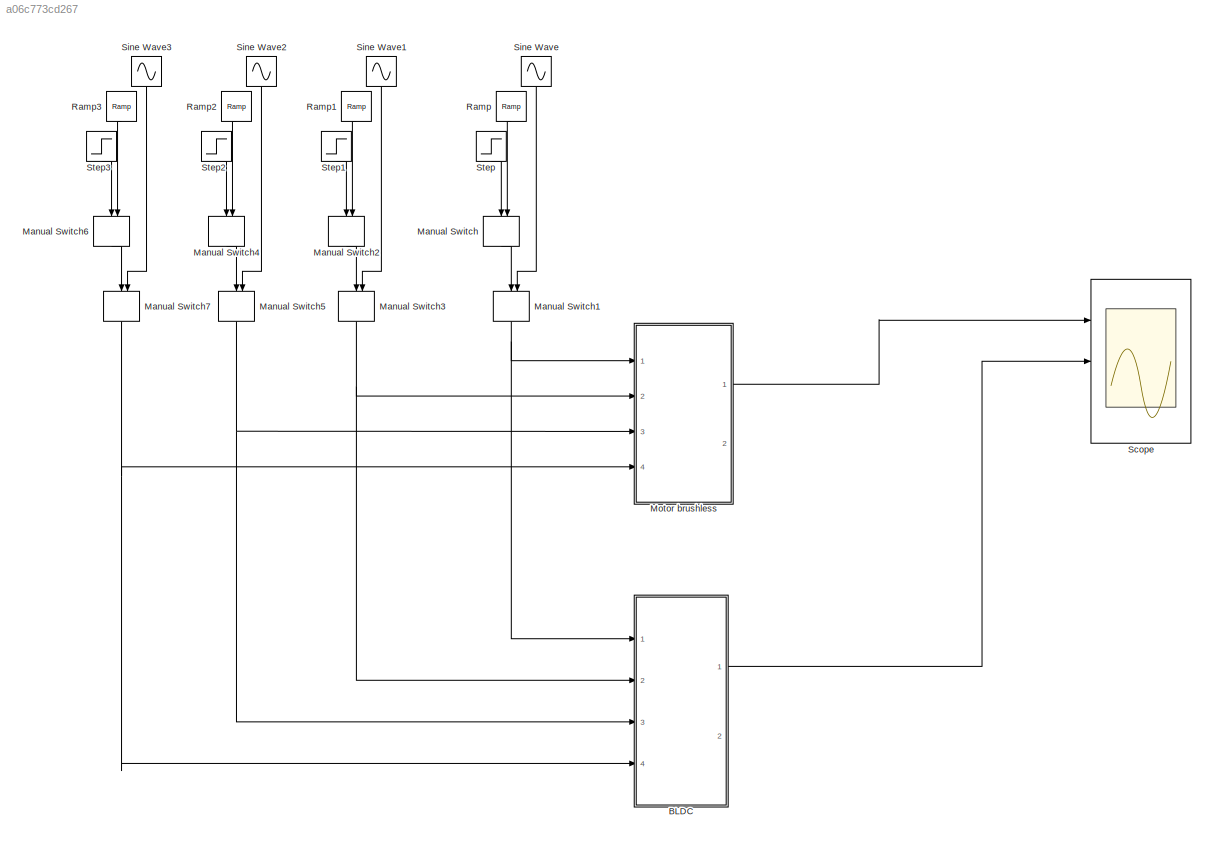
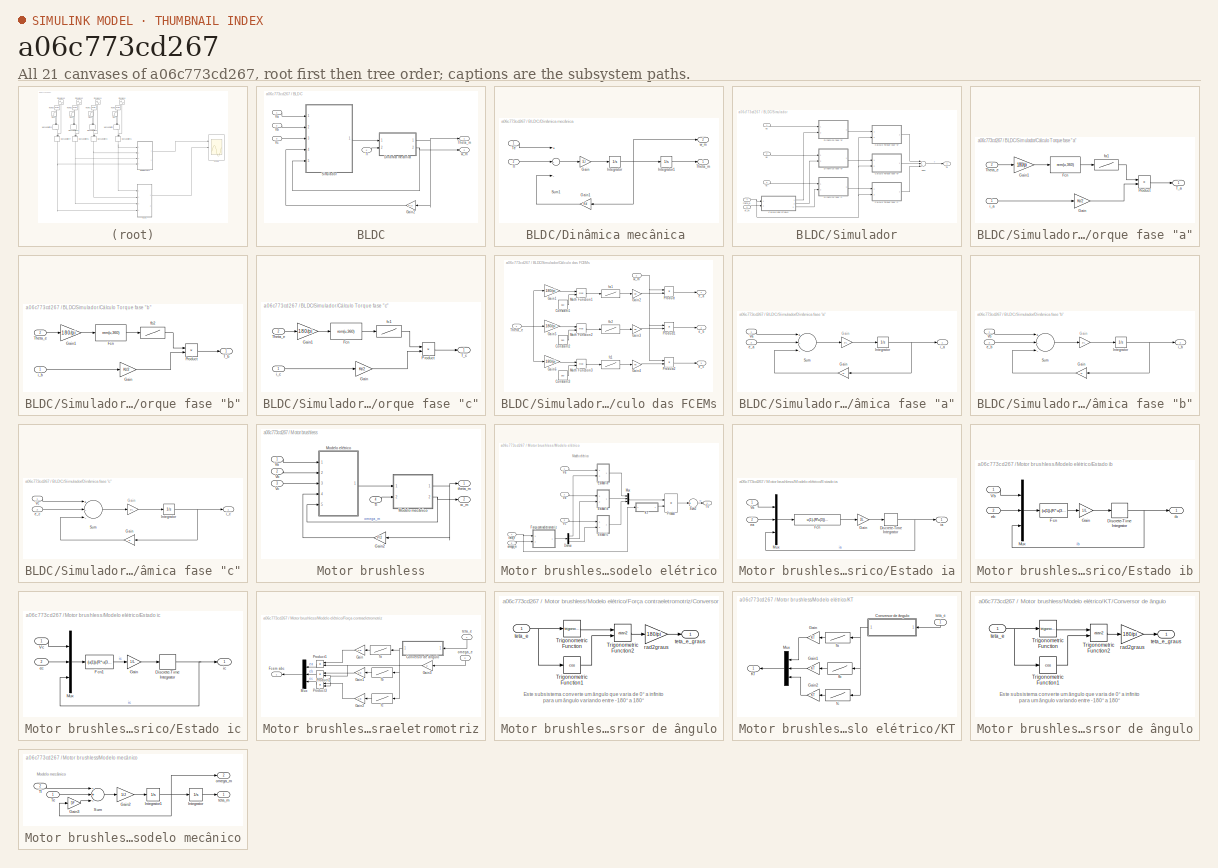
[diagram: thumbnail index - all 21 canvases of the model, root first then tree order]
MODEL slx_a06c773cd267
KIND model
BLOCK [SubSystem] BLDC
  FunctionWithSeparateData = off
  MaskHideContents = off
  MinAlgLoopOccurrences = off
  Opaque = off
  Ports = [4, 2]
  PropExecContextOutsideSubsystem = off
  RTWSystemCode = Auto
  RequestExecContextInheritance = off
BLOCK [SubSystem] BLDC/Dinâmica mecânica 
  FunctionWithSeparateData = off
  MaskHideContents = off
  MinAlgLoopOccurrences = off
  Opaque = off
  Ports = [2, 2]
  PropExecContextOutsideSubsystem = off
  RTWSystemCode = Auto
  RequestExecContextInheritance = off
BLOCK [Gain] BLDC/Dinâmica mecânica /Gain
  Gain = 1/J
  OutDataTypeStr = Inherit: Inherit via internal rule
  ParamDataTypeStr = Inherit: Inherit via internal rule
  SaturateOnIntegerOverflow = off
BLOCK [Gain] BLDC/Dinâmica mecânica /Gain1
  Gain = Kd
  OutDataTypeStr = Inherit: Inherit via internal rule
  ParamDataTypeStr = Inherit: Inherit via internal rule
  SaturateOnIntegerOverflow = off
BLOCK [Integrator] BLDC/Dinâmica mecânica /Integrator
  Ports = [1, 1]
BLOCK [Integrator] BLDC/Dinâmica mecânica /Integrator1
  Ports = [1, 1]
BLOCK [Sum] BLDC/Dinâmica mecânica /Sum1
  InputSameDT = off
  Inputs = +--
  OutDataTypeStr = Inherit: Inherit via internal rule
  Ports = [3, 1]
  SaturateOnIntegerOverflow = off
BLOCK [Inport] BLDC/Dinâmica mecânica /Te
  IconDisplay = Port number
BLOCK [Outport] BLDC/Dinâmica mecânica /Theta_m
  IconDisplay = Port number
BLOCK [Inport] BLDC/Dinâmica mecânica /Tl
  IconDisplay = Port number
  Port = 2
BLOCK [Outport] BLDC/Dinâmica mecânica /w_m
  IconDisplay = Port number
  Port = 2
BLOCK [Gain] BLDC/Gain2
  Gain = P/2
  OutDataTypeStr = Inherit: Inherit via internal rule
  ParamDataTypeStr = Inherit: Inherit via internal rule
  SaturateOnIntegerOverflow = off
BLOCK [SubSystem] BLDC/Simulador
  FunctionWithSeparateData = off
  MaskHideContents = off
  MinAlgLoopOccurrences = off
  Opaque = off
  Ports = [5, 1]
  PropExecContextOutsideSubsystem = off
  RTWSystemCode = Auto
  RequestExecContextInheritance = off
BLOCK [SubSystem] BLDC/Simulador/Cálculo Torque fase "a"
  FunctionWithSeparateData = off
  MaskHideContents = off
  MinAlgLoopOccurrences = off
  Opaque = off
  Ports = [2, 1]
  PropExecContextOutsideSubsystem = off
  RTWSystemCode = Auto
  RequestExecContextInheritance = off
BLOCK [Fcn] BLDC/Simulador/Cálculo Torque fase "a"/Fcn
  Expr = rem(u,360)
BLOCK [Gain] BLDC/Simulador/Cálculo Torque fase "a"/Gain
  Gain = Kt/2
  OutDataTypeStr = Inherit: Inherit via internal rule
  ParamDataTypeStr = Inherit: Inherit via internal rule
  SaturateOnIntegerOverflow = off
BLOCK [Gain] BLDC/Simulador/Cálculo Torque fase "a"/Gain1
  Gain = 180/pi
  OutDataTypeStr = Inherit: Inherit via internal rule
  ParamDataTypeStr = Inherit: Inherit via internal rule
  SaturateOnIntegerOverflow = off
BLOCK [Product] BLDC/Simulador/Cálculo Torque fase "a"/Product
  InputSameDT = off
  OutDataTypeStr = Inherit: Inherit via internal rule
  Ports = [2, 1]
  SaturateOnIntegerOverflow = off
BLOCK [Outport] BLDC/Simulador/Cálculo Torque fase "a"/T_a
  IconDisplay = Port number
BLOCK [Inport] BLDC/Simulador/Cálculo Torque fase "a"/Theta_e
  IconDisplay = Port number
  Port = 2
BLOCK [Lookup] BLDC/Simulador/Cálculo Torque fase "a"/fa1
  InputValues = [0 30 60 90 120 150 180 210 240 270 300 330 360]
  SaturateOnIntegerOverflow = off
  Table = [ 1 1 1 0 -1 -1 -1 -1 -1 0 1 1 1]
BLOCK [Inport] BLDC/Simulador/Cálculo Torque fase "a"/i_a
  IconDisplay = Port number
BLOCK [SubSystem] BLDC/Simulador/Cálculo Torque fase "b"
  FunctionWithSeparateData = off
  MaskHideContents = off
  MinAlgLoopOccurrences = off
  Opaque = off
  Ports = [2, 1]
  PropExecContextOutsideSubsystem = off
  RTWSystemCode = Auto
  RequestExecContextInheritance = off
BLOCK [Fcn] BLDC/Simulador/Cálculo Torque fase "b"/Fcn
  Expr = rem(u,360)
BLOCK [Gain] BLDC/Simulador/Cálculo Torque fase "b"/Gain
  Gain = Kt/2
  OutDataTypeStr = Inherit: Inherit via internal rule
  ParamDataTypeStr = Inherit: Inherit via internal rule
  SaturateOnIntegerOverflow = off
BLOCK [Gain] BLDC/Simulador/Cálculo Torque fase "b"/Gain1
  Gain = 180/pi
  OutDataTypeStr = Inherit: Inherit via internal rule
  ParamDataTypeStr = Inherit: Inherit via internal rule
  SaturateOnIntegerOverflow = off
BLOCK [Product] BLDC/Simulador/Cálculo Torque fase "b"/Product
  InputSameDT = off
  OutDataTypeStr = Inherit: Inherit via internal rule
  Ports = [2, 1]
  SaturateOnIntegerOverflow = off
BLOCK [Outport] BLDC/Simulador/Cálculo Torque fase "b"/T_b
  IconDisplay = Port number
BLOCK [Inport] BLDC/Simulador/Cálculo Torque fase "b"/Theta_e
  IconDisplay = Port number
  Port = 2
BLOCK [Lookup] BLDC/Simulador/Cálculo Torque fase "b"/fb2
  InputValues = [0 30 60 90 120 150 180 210 240 270 300 330 360]
  SaturateOnIntegerOverflow = off
  Table = [-1 0 1 1 1 1 1 0 -1 -1 -1 -1 -1]
BLOCK [Inport] BLDC/Simulador/Cálculo Torque fase "b"/i_b
  IconDisplay = Port number
BLOCK [SubSystem] BLDC/Simulador/Cálculo Torque fase "c"
  FunctionWithSeparateData = off
  MaskHideContents = off
  MinAlgLoopOccurrences = off
  Opaque = off
  Ports = [2, 1]
  PropExecContextOutsideSubsystem = off
  RTWSystemCode = Auto
  RequestExecContextInheritance = off
BLOCK [Fcn] BLDC/Simulador/Cálculo Torque fase "c"/Fcn
  Expr = rem(u,360)
BLOCK [Gain] BLDC/Simulador/Cálculo Torque fase "c"/Gain
  Gain = Kt/2
  OutDataTypeStr = Inherit: Inherit via internal rule
  ParamDataTypeStr = Inherit: Inherit via internal rule
  SaturateOnIntegerOverflow = off
BLOCK [Gain] BLDC/Simulador/Cálculo Torque fase "c"/Gain1
  Gain = 180/pi
  OutDataTypeStr = Inherit: Inherit via internal rule
  ParamDataTypeStr = Inherit: Inherit via internal rule
  SaturateOnIntegerOverflow = off
BLOCK [Product] BLDC/Simulador/Cálculo Torque fase "c"/Product
  InputSameDT = off
  OutDataTypeStr = Inherit: Inherit via internal rule
  Ports = [2, 1]
  SaturateOnIntegerOverflow = off
BLOCK [Outport] BLDC/Simulador/Cálculo Torque fase "c"/T_c
  IconDisplay = Port number
BLOCK [Inport] BLDC/Simulador/Cálculo Torque fase "c"/Theta_e
  IconDisplay = Port number
  Port = 2
BLOCK [Lookup] BLDC/Simulador/Cálculo Torque fase "c"/fc1
  InputValues = [0 30 60 90 120 150 180 210 240 270 300 330 360]
  SaturateOnIntegerOverflow = off
  Table = [-1 -1 -1 -1 -1 0 1 1 1 1 1 0 -1]
BLOCK [Inport] BLDC/Simulador/Cálculo Torque fase "c"/i_c
  IconDisplay = Port number
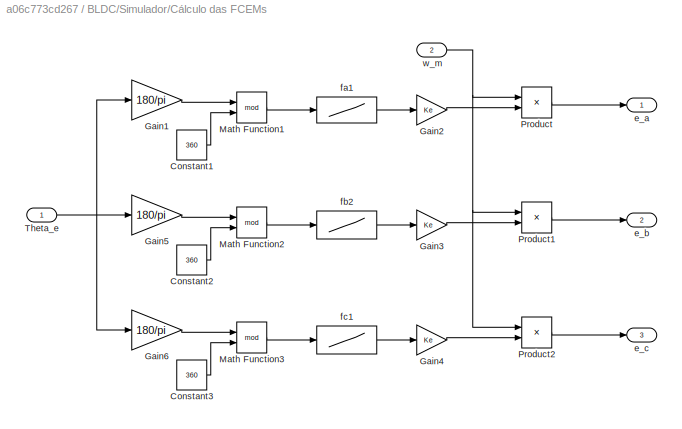
BLOCK [SubSystem] BLDC/Simulador/Cálculo das FCEMs
  FunctionWithSeparateData = off
  MaskHideContents = off
  MinAlgLoopOccurrences = off
  Opaque = off
  Ports = [2, 3]
  PropExecContextOutsideSubsystem = off
  RTWSystemCode = Auto
  RequestExecContextInheritance = off
BLOCK [Constant] BLDC/Simulador/Cálculo das FCEMs/Constant1
  Value = 360
BLOCK [Constant] BLDC/Simulador/Cálculo das FCEMs/Constant2
  Value = 360
BLOCK [Constant] BLDC/Simulador/Cálculo das FCEMs/Constant3
  Value = 360
BLOCK [Gain] BLDC/Simulador/Cálculo das FCEMs/Gain1
  Gain = 180/pi
  OutDataTypeStr = Inherit: Inherit via internal rule
  ParamDataTypeStr = Inherit: Inherit via internal rule
  SaturateOnIntegerOverflow = off
BLOCK [Gain] BLDC/Simulador/Cálculo das FCEMs/Gain2
  Gain = Ke
  OutDataTypeStr = Inherit: Inherit via internal rule
  ParamDataTypeStr = Inherit: Inherit via internal rule
  SaturateOnIntegerOverflow = off
BLOCK [Gain] BLDC/Simulador/Cálculo das FCEMs/Gain3
  Gain = Ke
  OutDataTypeStr = Inherit: Inherit via internal rule
  ParamDataTypeStr = Inherit: Inherit via internal rule
  SaturateOnIntegerOverflow = off
BLOCK [Gain] BLDC/Simulador/Cálculo das FCEMs/Gain4
  Gain = Ke
  OutDataTypeStr = Inherit: Inherit via internal rule
  ParamDataTypeStr = Inherit: Inherit via internal rule
  SaturateOnIntegerOverflow = off
BLOCK [Gain] BLDC/Simulador/Cálculo das FCEMs/Gain5
  Gain = 180/pi
  OutDataTypeStr = Inherit: Inherit via internal rule
  ParamDataTypeStr = Inherit: Inherit via internal rule
  SaturateOnIntegerOverflow = off
BLOCK [Gain] BLDC/Simulador/Cálculo das FCEMs/Gain6
  Gain = 180/pi
  OutDataTypeStr = Inherit: Inherit via internal rule
  ParamDataTypeStr = Inherit: Inherit via internal rule
  SaturateOnIntegerOverflow = off
BLOCK [Math] BLDC/Simulador/Cálculo das FCEMs/Math Function1
  Operator = mod
  Ports = [2, 1]
BLOCK [Math] BLDC/Simulador/Cálculo das FCEMs/Math Function2
  Operator = mod
  Ports = [2, 1]
BLOCK [Math] BLDC/Simulador/Cálculo das FCEMs/Math Function3
  Operator = mod
  Ports = [2, 1]
BLOCK [Product] BLDC/Simulador/Cálculo das FCEMs/Product
  InputSameDT = off
  OutDataTypeStr = Inherit: Inherit via internal rule
  Ports = [2, 1]
  SaturateOnIntegerOverflow = off
BLOCK [Product] BLDC/Simulador/Cálculo das FCEMs/Product1
  InputSameDT = off
  OutDataTypeStr = Inherit: Inherit via internal rule
  Ports = [2, 1]
  SaturateOnIntegerOverflow = off
BLOCK [Product] BLDC/Simulador/Cálculo das FCEMs/Product2
  InputSameDT = off
  OutDataTypeStr = Inherit: Inherit via internal rule
  Ports = [2, 1]
  SaturateOnIntegerOverflow = off
BLOCK [Inport] BLDC/Simulador/Cálculo das FCEMs/Theta_e
  IconDisplay = Port number
BLOCK [Outport] BLDC/Simulador/Cálculo das FCEMs/e_a
  IconDisplay = Port number
BLOCK [Outport] BLDC/Simulador/Cálculo das FCEMs/e_b
  IconDisplay = Port number
  Port = 2
BLOCK [Outport] BLDC/Simulador/Cálculo das FCEMs/e_c
  IconDisplay = Port number
  Port = 3
BLOCK [Lookup] BLDC/Simulador/Cálculo das FCEMs/fa1
  InputValues = [0 30 60 90 120 150 180 210 240 270 300 330 360]
  SaturateOnIntegerOverflow = off
  Table = [ 1 1 1 0 -1 -1 -1 -1 -1 0 1 1 1]
BLOCK [Lookup] BLDC/Simulador/Cálculo das FCEMs/fb2
  InputValues = [0 30 60 90 120 150 180 210 240 270 300 330 360]
  SaturateOnIntegerOverflow = off
  Table = [-1 0 1 1 1 1 1 0 -1 -1 -1 -1 -1]
BLOCK [Lookup] BLDC/Simulador/Cálculo das FCEMs/fc1
  InputValues = [0 30 60 90 120 150 180 210 240 270 300 330 360]
  SaturateOnIntegerOverflow = off
  Table = [-1 -1 -1 -1 -1 0 1 1 1 1 1 0 -1]
BLOCK [Inport] BLDC/Simulador/Cálculo das FCEMs/w_m
  IconDisplay = Port number
  Port = 2
BLOCK [SubSystem] BLDC/Simulador/Dinâmica fase "a"
  FunctionWithSeparateData = off
  MaskHideContents = off
  MinAlgLoopOccurrences = off
  Opaque = off
  Ports = [2, 1]
  PropExecContextOutsideSubsystem = off
  RTWSystemCode = Auto
  RequestExecContextInheritance = off
BLOCK [Gain] BLDC/Simulador/Dinâmica fase "a"/ 
  Gain = 1/L
  OutDataTypeStr = Inherit: Inherit via internal rule
  ParamDataTypeStr = Inherit: Inherit via internal rule
  SaturateOnIntegerOverflow = off
BLOCK [Gain] BLDC/Simulador/Dinâmica fase "a"/Gain
  Gain = R
  OutDataTypeStr = Inherit: Inherit via internal rule
  ParamDataTypeStr = Inherit: Inherit via internal rule
  SaturateOnIntegerOverflow = off
BLOCK [Integrator] BLDC/Simulador/Dinâmica fase "a"/Integrator
  Ports = [1, 1]
BLOCK [Sum] BLDC/Simulador/Dinâmica fase "a"/Sum
  InputSameDT = off
  Inputs = +--
  OutDataTypeStr = Inherit: Inherit via internal rule
  Ports = [3, 1]
  SaturateOnIntegerOverflow = off
BLOCK [Inport] BLDC/Simulador/Dinâmica fase "a"/Va
  IconDisplay = Port number
BLOCK [Inport] BLDC/Simulador/Dinâmica fase "a"/e_a
  IconDisplay = Port number
  Port = 2
BLOCK [Outport] BLDC/Simulador/Dinâmica fase "a"/i_a
  IconDisplay = Port number
BLOCK [SubSystem] BLDC/Simulador/Dinâmica fase "b"
  FunctionWithSeparateData = off
  MaskHideContents = off
  MinAlgLoopOccurrences = off
  Opaque = off
  Ports = [2, 1]
  PropExecContextOutsideSubsystem = off
  RTWSystemCode = Auto
  RequestExecContextInheritance = off
BLOCK [Gain] BLDC/Simulador/Dinâmica fase "b"/ 
  Gain = 1/L
  OutDataTypeStr = Inherit: Inherit via internal rule
  ParamDataTypeStr = Inherit: Inherit via internal rule
  SaturateOnIntegerOverflow = off
BLOCK [Gain] BLDC/Simulador/Dinâmica fase "b"/Gain
  Gain = R
  OutDataTypeStr = Inherit: Inherit via internal rule
  ParamDataTypeStr = Inherit: Inherit via internal rule
  SaturateOnIntegerOverflow = off
BLOCK [Integrator] BLDC/Simulador/Dinâmica fase "b"/Integrator
  Ports = [1, 1]
BLOCK [Sum] BLDC/Simulador/Dinâmica fase "b"/Sum
  InputSameDT = off
  Inputs = +--
  OutDataTypeStr = Inherit: Inherit via internal rule
  Ports = [3, 1]
  SaturateOnIntegerOverflow = off
BLOCK [Inport] BLDC/Simulador/Dinâmica fase "b"/Vb
  IconDisplay = Port number
BLOCK [Inport] BLDC/Simulador/Dinâmica fase "b"/e_b
  IconDisplay = Port number
  Port = 2
BLOCK [Outport] BLDC/Simulador/Dinâmica fase "b"/i_b
  IconDisplay = Port number
BLOCK [SubSystem] BLDC/Simulador/Dinâmica fase "c"
  FunctionWithSeparateData = off
  MaskHideContents = off
  MinAlgLoopOccurrences = off
  Opaque = off
  Ports = [2, 1]
  PropExecContextOutsideSubsystem = off
  RTWSystemCode = Auto
  RequestExecContextInheritance = off
BLOCK [Gain] BLDC/Simulador/Dinâmica fase "c"/ 
  Gain = 1/L
  OutDataTypeStr = Inherit: Inherit via internal rule
  ParamDataTypeStr = Inherit: Inherit via internal rule
  SaturateOnIntegerOverflow = off
BLOCK [Gain] BLDC/Simulador/Dinâmica fase "c"/Gain
  Gain = R
  OutDataTypeStr = Inherit: Inherit via internal rule
  ParamDataTypeStr = Inherit: Inherit via internal rule
  SaturateOnIntegerOverflow = off
BLOCK [Integrator] BLDC/Simulador/Dinâmica fase "c"/Integrator
  Ports = [1, 1]
BLOCK [Sum] BLDC/Simulador/Dinâmica fase "c"/Sum
  InputSameDT = off
  Inputs = +--
  OutDataTypeStr = Inherit: Inherit via internal rule
  Ports = [3, 1]
  SaturateOnIntegerOverflow = off
BLOCK [Inport] BLDC/Simulador/Dinâmica fase "c"/Vc
  IconDisplay = Port number
BLOCK [Inport] BLDC/Simulador/Dinâmica fase "c"/e_c
  IconDisplay = Port number
  Port = 2
BLOCK [Outport] BLDC/Simulador/Dinâmica fase "c"/i_c
  IconDisplay = Port number
BLOCK [Sum] BLDC/Simulador/Sum
  InputSameDT = off
  Inputs = +++
  OutDataTypeStr = Inherit: Inherit via internal rule
  Ports = [3, 1]
  SaturateOnIntegerOverflow = off
BLOCK [Outport] BLDC/Simulador/Te
  IconDisplay = Port number
BLOCK [Inport] BLDC/Simulador/Va
  IconDisplay = Port number
BLOCK [Inport] BLDC/Simulador/Vb
  IconDisplay = Port number
  Port = 2
BLOCK [Inport] BLDC/Simulador/Vc
  IconDisplay = Port number
  Port = 3
BLOCK [Inport] BLDC/Simulador/theta_e
  IconDisplay = Port number
  Port = 4
BLOCK [Inport] BLDC/Simulador/w_m
  IconDisplay = Port number
  Port = 5
BLOCK [Outport] BLDC/Theta_m
  IconDisplay = Port number
BLOCK [Inport] BLDC/Tl
  IconDisplay = Port number
  Port = 4
BLOCK [Inport] BLDC/Va
  IconDisplay = Port number
BLOCK [Inport] BLDC/Vb
  IconDisplay = Port number
  Port = 2
BLOCK [Inport] BLDC/Vc
  IconDisplay = Port number
  Port = 3
BLOCK [Outport] BLDC/w_m
  IconDisplay = Port number
  Port = 2
BLOCK [ManualSwitch] Manual Switch
BLOCK [ManualSwitch] Manual Switch1
BLOCK [ManualSwitch] Manual Switch2
BLOCK [ManualSwitch] Manual Switch3
BLOCK [ManualSwitch] Manual Switch4
BLOCK [ManualSwitch] Manual Switch5
BLOCK [ManualSwitch] Manual Switch6
BLOCK [ManualSwitch] Manual Switch7
BLOCK [SubSystem] Motor brushless
  FunctionWithSeparateData = off
  MaskHideContents = off
  MinAlgLoopOccurrences = off
  Opaque = off
  Ports = [4, 2]
  PropExecContextOutsideSubsystem = off
  RTWSystemCode = Auto
  RequestExecContextInheritance = off
BLOCK [Gain] Motor brushless/Gain2
  Gain = P/2
  OutDataTypeStr = Inherit: Inherit via internal rule
  ParamDataTypeStr = Inherit: Inherit via internal rule
  SaturateOnIntegerOverflow = off
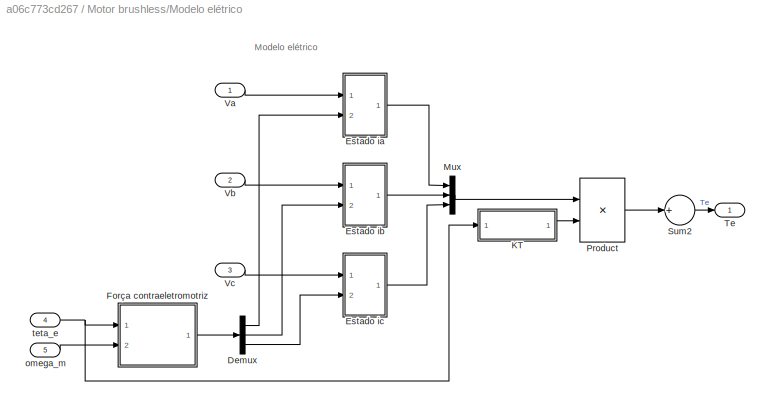
BLOCK [SubSystem] Motor brushless/Modelo elétrico
  FunctionWithSeparateData = off
  MaskHideContents = off
  MinAlgLoopOccurrences = off
  Opaque = off
  Ports = [5, 1]
  PropExecContextOutsideSubsystem = off
  RTWSystemCode = Auto
  RequestExecContextInheritance = off
BLOCK [Demux] Motor brushless/Modelo elétrico/Demux
  DisplayOption = bar
  Outputs = 3
  Ports = [1, 3]
BLOCK [SubSystem] Motor brushless/Modelo elétrico/Estado ia
  FunctionWithSeparateData = off
  MaskHideContents = off
  MinAlgLoopOccurrences = off
  Opaque = off
  Ports = [2, 1]
  PropExecContextOutsideSubsystem = off
  RTWSystemCode = Auto
  RequestExecContextInheritance = off
BLOCK [DiscreteIntegrator] Motor brushless/Modelo elétrico/Estado ia/Discrete-Time Integrator
  ICPrevOutput = DiscIntNeverNeededParam
  ICPrevScaledInput = DiscIntNeverNeededParam
  Ports = [1, 1]
  SampleTime = Ts
BLOCK [Fcn] Motor brushless/Modelo elétrico/Estado ia/Fcn
  Expr = u(1)-(R*u(3))-(u(2))
BLOCK [Gain] Motor brushless/Modelo elétrico/Estado ia/Gain
  Gain = 1/L
  OutDataTypeStr = Inherit: Inherit via internal rule
  ParamDataTypeStr = Inherit: Inherit via internal rule
  SaturateOnIntegerOverflow = off
BLOCK [Mux] Motor brushless/Modelo elétrico/Estado ia/Mux
  DisplayOption = bar
  Inputs = 3
  Ports = [3, 1]
BLOCK [Inport] Motor brushless/Modelo elétrico/Estado ia/Va
  IconDisplay = Port number
BLOCK [Inport] Motor brushless/Modelo elétrico/Estado ia/ea
  IconDisplay = Port number
  Port = 2
BLOCK [Outport] Motor brushless/Modelo elétrico/Estado ia/ia
  IconDisplay = Port number
BLOCK [SubSystem] Motor brushless/Modelo elétrico/Estado ib
  FunctionWithSeparateData = off
  MaskHideContents = off
  MinAlgLoopOccurrences = off
  Opaque = off
  Ports = [2, 1]
  PropExecContextOutsideSubsystem = off
  RTWSystemCode = Auto
  RequestExecContextInheritance = off
BLOCK [DiscreteIntegrator] Motor brushless/Modelo elétrico/Estado ib/Discrete-Time Integrator
  ICPrevOutput = DiscIntNeverNeededParam
  ICPrevScaledInput = DiscIntNeverNeededParam
  Ports = [1, 1]
  SampleTime = Ts
BLOCK [Fcn] Motor brushless/Modelo elétrico/Estado ib/Fcn
  Expr = (u(1))-(R*u(3))-(u(2))
BLOCK [Gain] Motor brushless/Modelo elétrico/Estado ib/Gain
  Gain = 1/L
  OutDataTypeStr = Inherit: Inherit via internal rule
  ParamDataTypeStr = Inherit: Inherit via internal rule
  SaturateOnIntegerOverflow = off
BLOCK [Mux] Motor brushless/Modelo elétrico/Estado ib/Mux
  DisplayOption = bar
  Inputs = 3
  Ports = [3, 1]
BLOCK [Inport] Motor brushless/Modelo elétrico/Estado ib/Vb
  IconDisplay = Port number
BLOCK [Inport] Motor brushless/Modelo elétrico/Estado ib/eb
  IconDisplay = Port number
  Port = 2
BLOCK [Outport] Motor brushless/Modelo elétrico/Estado ib/ib
  IconDisplay = Port number
BLOCK [SubSystem] Motor brushless/Modelo elétrico/Estado ic
  FunctionWithSeparateData = off
  MaskHideContents = off
  MinAlgLoopOccurrences = off
  Opaque = off
  Ports = [2, 1]
  PropExecContextOutsideSubsystem = off
  RTWSystemCode = Auto
  RequestExecContextInheritance = off
BLOCK [DiscreteIntegrator] Motor brushless/Modelo elétrico/Estado ic/Discrete-Time Integrator
  ICPrevOutput = DiscIntNeverNeededParam
  ICPrevScaledInput = DiscIntNeverNeededParam
  Ports = [1, 1]
  SampleTime = Ts
BLOCK [Fcn] Motor brushless/Modelo elétrico/Estado ic/Fcn1
  Expr = (u(1))-(R*u(3))-(u(2))
BLOCK [Gain] Motor brushless/Modelo elétrico/Estado ic/Gain
  Gain = 1/L
  OutDataTypeStr = Inherit: Inherit via internal rule
  ParamDataTypeStr = Inherit: Inherit via internal rule
  SaturateOnIntegerOverflow = off
BLOCK [Mux] Motor brushless/Modelo elétrico/Estado ic/Mux
  DisplayOption = bar
  Inputs = 3
  Ports = [3, 1]
BLOCK [Inport] Motor brushless/Modelo elétrico/Estado ic/Vc
  IconDisplay = Port number
BLOCK [Inport] Motor brushless/Modelo elétrico/Estado ic/ec
  IconDisplay = Port number
  Port = 2
BLOCK [Outport] Motor brushless/Modelo elétrico/Estado ic/ic
  IconDisplay = Port number
BLOCK [SubSystem] Motor brushless/Modelo elétrico/Força contraeletromotriz
  FunctionWithSeparateData = off
  MaskHideContents = off
  MinAlgLoopOccurrences = off
  Opaque = off
  Ports = [2, 1]
  PropExecContextOutsideSubsystem = off
  RTWSystemCode = Auto
  RequestExecContextInheritance = off
BLOCK [SubSystem] Motor brushless/Modelo elétrico/Força contraeletromotriz/Conversor de ângulo
  FunctionWithSeparateData = off
  MaskHideContents = off
  MinAlgLoopOccurrences = off
  Opaque = off
  Ports = [1, 1]
  PropExecContextOutsideSubsystem = off
  RTWSystemCode = Auto
  RequestExecContextInheritance = off
BLOCK [Trigonometry] Motor brushless/Modelo elétrico/Força contraeletromotriz/Conversor de ângulo/Trigonometric Function
  Ports = [1, 1]
BLOCK [Trigonometry] Motor brushless/Modelo elétrico/Força contraeletromotriz/Conversor de ângulo/Trigonometric Function1
  Operator = cos
  Ports = [1, 1]
BLOCK [Trigonometry] Motor brushless/Modelo elétrico/Força contraeletromotriz/Conversor de ângulo/Trigonometric Function2
  Operator = atan2
  Ports = [2, 1]
BLOCK [Gain] Motor brushless/Modelo elétrico/Força contraeletromotriz/Conversor de ângulo/rad2graus
  Gain = 180/pi
BLOCK [Inport] Motor brushless/Modelo elétrico/Força contraeletromotriz/Conversor de ângulo/teta_e
  IconDisplay = Port number
BLOCK [Outport] Motor brushless/Modelo elétrico/Força contraeletromotriz/Conversor de ângulo/teta_e_graus
  IconDisplay = Port number
BLOCK [Outport] Motor brushless/Modelo elétrico/Força contraeletromotriz/Fcem abc
  IconDisplay = Port number
BLOCK [Gain] Motor brushless/Modelo elétrico/Força contraeletromotriz/Gain
  Gain = KE
  OutDataTypeStr = Inherit: Inherit via internal rule
  ParamDataTypeStr = Inherit: Inherit via internal rule
  SaturateOnIntegerOverflow = off
BLOCK [Gain] Motor brushless/Modelo elétrico/Força contraeletromotriz/Gain1
  Gain = KE
  OutDataTypeStr = Inherit: Inherit via internal rule
  ParamDataTypeStr = Inherit: Inherit via internal rule
  SaturateOnIntegerOverflow = off
BLOCK [Gain] Motor brushless/Modelo elétrico/Força contraeletromotriz/Gain2
  Gain = KE
  OutDataTypeStr = Inherit: Inherit via internal rule
  ParamDataTypeStr = Inherit: Inherit via internal rule
  SaturateOnIntegerOverflow = off
BLOCK [Gain] Motor brushless/Modelo elétrico/Força contraeletromotriz/Gain3
  OutDataTypeStr = Inherit: Inherit via internal rule
  ParamDataTypeStr = Inherit: Inherit via internal rule
  SaturateOnIntegerOverflow = off
BLOCK [Mux] Motor brushless/Modelo elétrico/Força contraeletromotriz/Mux
  DisplayOption = bar
  Inputs = 3
  Ports = [3, 1]
BLOCK [Product] Motor brushless/Modelo elétrico/Força contraeletromotriz/Product1
  InputSameDT = off
  Ports = [2, 1]
  RndMeth = Floor
BLOCK [Product] Motor brushless/Modelo elétrico/Força contraeletromotriz/Product2
  InputSameDT = off
  Ports = [2, 1]
  RndMeth = Floor
BLOCK [Product] Motor brushless/Modelo elétrico/Força contraeletromotriz/Product3
  InputSameDT = off
  Ports = [2, 1]
  RndMeth = Floor
BLOCK [Lookup] Motor brushless/Modelo elétrico/Força contraeletromotriz/fa
  InputValues = [-180 -150 -120 -90 -60 -30 0 30 60 90 120 150 180]
  SaturateOnIntegerOverflow = off
  Table = [-1 -1 -1 0 1 1 1 1 1 0 -1 -1 -1]
BLOCK [Lookup] Motor brushless/Modelo elétrico/Força contraeletromotriz/fb
  InputValues = [-180 -150 -120 -90 -60 -30 0 30 60 90 120 150 180]
  SaturateOnIntegerOverflow = off
  Table = [1 0 -1 -1 -1 -1  -1 0 1 1 1 1 1]
BLOCK [Lookup] Motor brushless/Modelo elétrico/Força contraeletromotriz/fc
  InputValues = [-180 -150 -120 -90 -60 -30 0 30 60 90 120 150 180]
  SaturateOnIntegerOverflow = off
  Table = [1 1 1 1 1 0 -1 -1 -1 -1 -1 0 1]
BLOCK [Inport] Motor brushless/Modelo elétrico/Força contraeletromotriz/omega_e
  IconDisplay = Port number
  Port = 2
BLOCK [Inport] Motor brushless/Modelo elétrico/Força contraeletromotriz/teta_e
  IconDisplay = Port number
BLOCK [SubSystem] Motor brushless/Modelo elétrico/KT
  FunctionWithSeparateData = off
  MaskHideContents = off
  MinAlgLoopOccurrences = off
  Opaque = off
  Ports = [1, 1]
  PropExecContextOutsideSubsystem = off
  RTWSystemCode = Auto
  RequestExecContextInheritance = off
BLOCK [SubSystem] Motor brushless/Modelo elétrico/KT/Conversor de ângulo
  FunctionWithSeparateData = off
  MaskHideContents = off
  MinAlgLoopOccurrences = off
  Opaque = off
  Ports = [1, 1]
  PropExecContextOutsideSubsystem = off
  RTWSystemCode = Auto
  RequestExecContextInheritance = off
BLOCK [Trigonometry] Motor brushless/Modelo elétrico/KT/Conversor de ângulo/Trigonometric Function
  Ports = [1, 1]
BLOCK [Trigonometry] Motor brushless/Modelo elétrico/KT/Conversor de ângulo/Trigonometric Function1
  Operator = cos
  Ports = [1, 1]
BLOCK [Trigonometry] Motor brushless/Modelo elétrico/KT/Conversor de ângulo/Trigonometric Function2
  Operator = atan2
  Ports = [2, 1]
BLOCK [Gain] Motor brushless/Modelo elétrico/KT/Conversor de ângulo/rad2graus
  Gain = 180/pi
BLOCK [Inport] Motor brushless/Modelo elétrico/KT/Conversor de ângulo/teta_e
  IconDisplay = Port number
BLOCK [Outport] Motor brushless/Modelo elétrico/KT/Conversor de ângulo/teta_e_graus
  IconDisplay = Port number
BLOCK [Gain] Motor brushless/Modelo elétrico/KT/Gain
  Gain = KT
  OutDataTypeStr = Inherit: Inherit via internal rule
  ParamDataTypeStr = Inherit: Inherit via internal rule
  SaturateOnIntegerOverflow = off
BLOCK [Gain] Motor brushless/Modelo elétrico/KT/Gain1
  Gain = KT
  OutDataTypeStr = Inherit: Inherit via internal rule
  ParamDataTypeStr = Inherit: Inherit via internal rule
  SaturateOnIntegerOverflow = off
BLOCK [Gain] Motor brushless/Modelo elétrico/KT/Gain2
  Gain = KT
  OutDataTypeStr = Inherit: Inherit via internal rule
  ParamDataTypeStr = Inherit: Inherit via internal rule
  SaturateOnIntegerOverflow = off
BLOCK [Outport] Motor brushless/Modelo elétrico/KT/KT
  IconDisplay = Port number
BLOCK [Mux] Motor brushless/Modelo elétrico/KT/Mux
  DisplayOption = bar
  Inputs = 3
  Ports = [3, 1]
BLOCK [Lookup] Motor brushless/Modelo elétrico/KT/fa
  InputValues = [-180 -150 -120 -90 -60 -30 0 30 60 90 120 150 180]
  SaturateOnIntegerOverflow = off
  Table = [-1 -1 -1 0 1 1 1 1 1 0 -1 -1 -1]
BLOCK [Lookup] Motor brushless/Modelo elétrico/KT/fb
  InputValues = [-180 -150 -120 -90 -60 -30 0 30 60 90 120 150 180]
  SaturateOnIntegerOverflow = off
  Table = [1 0 -1 -1 -1 -1  -1 0 1 1 1 1 1]
BLOCK [Lookup] Motor brushless/Modelo elétrico/KT/fc
  InputValues = [-180 -150 -120 -90 -60 -30 0 30 60 90 120 150 180]
  SaturateOnIntegerOverflow = off
  Table = [1 1 1 1 1 0 -1 -1 -1 -1 -1 0 1]
BLOCK [Inport] Motor brushless/Modelo elétrico/KT/teta_e
  IconDisplay = Port number
BLOCK [Mux] Motor brushless/Modelo elétrico/Mux
  DisplayOption = bar
  Inputs = 3
  Ports = [3, 1]
BLOCK [Product] Motor brushless/Modelo elétrico/Product
  InputSameDT = off
  Ports = [2, 1]
  RndMeth = Floor
BLOCK [Sum] Motor brushless/Modelo elétrico/Sum2
  IconShape = round
  InputSameDT = off
  Inputs = +
  OutDataTypeStr = Inherit: Inherit via internal rule
  Ports = [1, 1]
BLOCK [Outport] Motor brushless/Modelo elétrico/Te
  IconDisplay = Port number
BLOCK [Inport] Motor brushless/Modelo elétrico/Va
  IconDisplay = Port number
BLOCK [Inport] Motor brushless/Modelo elétrico/Vb
  IconDisplay = Port number
  Port = 2
BLOCK [Inport] Motor brushless/Modelo elétrico/Vc
  IconDisplay = Port number
  Port = 3
BLOCK [Inport] Motor brushless/Modelo elétrico/omega_m
  IconDisplay = Port number
  Port = 5
BLOCK [Inport] Motor brushless/Modelo elétrico/teta_e
  IconDisplay = Port number
  Port = 4
BLOCK [SubSystem] Motor brushless/Modelo mecânico
  FunctionWithSeparateData = off
  MaskHideContents = off
  MinAlgLoopOccurrences = off
  Opaque = off
  Ports = [2, 2]
  PropExecContextOutsideSubsystem = off
  RTWSystemCode = Auto
  RequestExecContextInheritance = off
BLOCK [Gain] Motor brushless/Modelo mecânico/Gain2
  Gain = 1/J
BLOCK [Gain] Motor brushless/Modelo mecânico/Gain3
  Gain = DF
BLOCK [Integrator] Motor brushless/Modelo mecânico/Integrator
  Ports = [1, 1]
BLOCK [Integrator] Motor brushless/Modelo mecânico/Integrator1
  Ports = [1, 1]
BLOCK [Sum] Motor brushless/Modelo mecânico/Sum
  Inputs = -+-
  Ports = [3, 1]
BLOCK [Inport] Motor brushless/Modelo mecânico/Te
  IconDisplay = Port number
BLOCK [Inport] Motor brushless/Modelo mecânico/Tl
  IconDisplay = Port number
  Port = 2
BLOCK [Outport] Motor brushless/Modelo mecânico/omega_m
  IconDisplay = Port number
  Port = 2
BLOCK [Outport] Motor brushless/Modelo mecânico/teta_m
  IconDisplay = Port number
BLOCK [Inport] Motor brushless/Tl
  IconDisplay = Port number
  Port = 4
BLOCK [Inport] Motor brushless/Va
  IconDisplay = Port number
BLOCK [Inport] Motor brushless/Vb
  IconDisplay = Port number
  Port = 2
BLOCK [Inport] Motor brushless/Vc
  IconDisplay = Port number
  Port = 3
BLOCK [Outport] Motor brushless/theta_m
  IconDisplay = Port number
BLOCK [Outport] Motor brushless/w_m
  IconDisplay = Port number
  Port = 2
BLOCK [Reference] Ramp  REF=simulink/Sources/Ramp
  Ports = [0, 1]
  SourceBlock = simulink/Sources/Ramp
  SourceType = Ramp
  VectorParams1D = on
  X0 = 0
  slope = 2*pi
  start = 0
BLOCK [Reference] Ramp1  REF=simulink/Sources/Ramp
  Ports = [0, 1]
  SourceBlock = simulink/Sources/Ramp
  SourceType = Ramp
  VectorParams1D = on
  X0 = 0
  slope = 2*pi
  start = 0
BLOCK [Reference] Ramp2  REF=simulink/Sources/Ramp
  Ports = [0, 1]
  SourceBlock = simulink/Sources/Ramp
  SourceType = Ramp
  VectorParams1D = on
  X0 = 0
  slope = 2*pi
  start = 0
BLOCK [Reference] Ramp3  REF=simulink/Sources/Ramp
  Ports = [0, 1]
  SourceBlock = simulink/Sources/Ramp
  SourceType = Ramp
  VectorParams1D = on
  X0 = 0
  slope = 2*pi
  start = 0
BLOCK [Scope] Scope
  DataFormat = StructureWithTime
  Floating = off
  LimitDataPoints = off
  NumInputPorts = 3
  Ports = [3]
  SampleTime = 0
  ShowLegends = off
  TimeRange = 0.5
  YMax = 0~0~0.01
  YMin = -0.275~-90~-0.01
  ZoomMode = yonly
BLOCK [Sin] Sine Wave
  Ports = [0, 1]
  SampleTime = 0
BLOCK [Sin] Sine Wave1
  Ports = [0, 1]
  SampleTime = 0
BLOCK [Sin] Sine Wave2
  Ports = [0, 1]
  SampleTime = 0
BLOCK [Sin] Sine Wave3
  Ports = [0, 1]
  SampleTime = 0
BLOCK [Step] Step
  After = 12
  SampleTime = 0
  Time = 0
BLOCK [Step] Step1
  After = 12
  SampleTime = 0
  Time = 0
BLOCK [Step] Step2
  After = 12
  SampleTime = 0
  Time = 0
BLOCK [Step] Step3
  After = 0
  SampleTime = 0
  Time = 0
ANNOTATION BLDC/Simulador/Dinâmica fase "a": Gain
ANNOTATION BLDC/Simulador/Dinâmica fase "b": Gain
ANNOTATION BLDC/Simulador/Dinâmica fase "c": Gain
ANNOTATION Motor brushless/Modelo elétrico: Modelo elétrico
ANNOTATION Motor brushless/Modelo elétrico/Força contraeletromotriz/Conversor de ângulo: Este subsistema converte um ângulo que varia de 0° a infinito para um ângulo variando entre -180° a 180°
ANNOTATION Motor brushless/Modelo elétrico/KT/Conversor de ângulo: Este subsistema converte um ângulo que varia de 0° a infinito para um ângulo variando entre -180° a 180°
ANNOTATION Motor brushless/Modelo mecânico: Modelo mecânico
LINE BLDC/Dinâmica mecânica /Gain1:1 -> BLDC/Dinâmica mecânica /Sum1:3
LINE BLDC/Dinâmica mecânica /Gain:1 -> BLDC/Dinâmica mecânica /Integrator:1
LINE BLDC/Dinâmica mecânica /Integrator1:1 -> BLDC/Dinâmica mecânica /Theta_m:1
NET BLDC/Dinâmica mecânica /Integrator:1 -> BLDC/Dinâmica mecânica /Gain1:1, BLDC/Dinâmica mecânica /Integrator1:1, BLDC/Dinâmica mecânica /w_m:1
LINE BLDC/Dinâmica mecânica /Sum1:1 -> BLDC/Dinâmica mecânica /Gain:1
LINE BLDC/Dinâmica mecânica /Te:1 -> BLDC/Dinâmica mecânica /Sum1:1
LINE BLDC/Dinâmica mecânica /Tl:1 -> BLDC/Dinâmica mecânica /Sum1:2
NET BLDC/Dinâmica mecânica :1 -> BLDC/Gain2:1, BLDC/Theta_m:1
NET BLDC/Dinâmica mecânica :2 -> BLDC/Simulador:5, BLDC/w_m:1
LINE BLDC/Gain2:1 -> BLDC/Simulador:4
LINE BLDC/Simulador/Cálculo Torque fase "a"/Fcn:1 -> BLDC/Simulador/Cálculo Torque fase "a"/fa1:1
LINE BLDC/Simulador/Cálculo Torque fase "a"/Gain1:1 -> BLDC/Simulador/Cálculo Torque fase "a"/Fcn:1
LINE BLDC/Simulador/Cálculo Torque fase "a"/Gain:1 -> BLDC/Simulador/Cálculo Torque fase "a"/Product:2
LINE BLDC/Simulador/Cálculo Torque fase "a"/Product:1 -> BLDC/Simulador/Cálculo Torque fase "a"/T_a:1
LINE BLDC/Simulador/Cálculo Torque fase "a"/Theta_e:1 -> BLDC/Simulador/Cálculo Torque fase "a"/Gain1:1
LINE BLDC/Simulador/Cálculo Torque fase "a"/fa1:1 -> BLDC/Simulador/Cálculo Torque fase "a"/Product:1
LINE BLDC/Simulador/Cálculo Torque fase "a"/i_a:1 -> BLDC/Simulador/Cálculo Torque fase "a"/Gain:1
LINE BLDC/Simulador/Cálculo Torque fase "a":1 -> BLDC/Simulador/Sum:1
LINE BLDC/Simulador/Cálculo Torque fase "b"/Fcn:1 -> BLDC/Simulador/Cálculo Torque fase "b"/fb2:1
LINE BLDC/Simulador/Cálculo Torque fase "b"/Gain1:1 -> BLDC/Simulador/Cálculo Torque fase "b"/Fcn:1
LINE BLDC/Simulador/Cálculo Torque fase "b"/Gain:1 -> BLDC/Simulador/Cálculo Torque fase "b"/Product:2
LINE BLDC/Simulador/Cálculo Torque fase "b"/Product:1 -> BLDC/Simulador/Cálculo Torque fase "b"/T_b:1
LINE BLDC/Simulador/Cálculo Torque fase "b"/Theta_e:1 -> BLDC/Simulador/Cálculo Torque fase "b"/Gain1:1
LINE BLDC/Simulador/Cálculo Torque fase "b"/fb2:1 -> BLDC/Simulador/Cálculo Torque fase "b"/Product:1
LINE BLDC/Simulador/Cálculo Torque fase "b"/i_b:1 -> BLDC/Simulador/Cálculo Torque fase "b"/Gain:1
LINE BLDC/Simulador/Cálculo Torque fase "b":1 -> BLDC/Simulador/Sum:2
LINE BLDC/Simulador/Cálculo Torque fase "c"/Fcn:1 -> BLDC/Simulador/Cálculo Torque fase "c"/fc1:1
LINE BLDC/Simulador/Cálculo Torque fase "c"/Gain1:1 -> BLDC/Simulador/Cálculo Torque fase "c"/Fcn:1
LINE BLDC/Simulador/Cálculo Torque fase "c"/Gain:1 -> BLDC/Simulador/Cálculo Torque fase "c"/Product:2
LINE BLDC/Simulador/Cálculo Torque fase "c"/Product:1 -> BLDC/Simulador/Cálculo Torque fase "c"/T_c:1
LINE BLDC/Simulador/Cálculo Torque fase "c"/Theta_e:1 -> BLDC/Simulador/Cálculo Torque fase "c"/Gain1:1
LINE BLDC/Simulador/Cálculo Torque fase "c"/fc1:1 -> BLDC/Simulador/Cálculo Torque fase "c"/Product:1
LINE BLDC/Simulador/Cálculo Torque fase "c"/i_c:1 -> BLDC/Simulador/Cálculo Torque fase "c"/Gain:1
LINE BLDC/Simulador/Cálculo Torque fase "c":1 -> BLDC/Simulador/Sum:3
LINE BLDC/Simulador/Cálculo das FCEMs/Constant1:1 -> BLDC/Simulador/Cálculo das FCEMs/Math Function1:2
LINE BLDC/Simulador/Cálculo das FCEMs/Constant2:1 -> BLDC/Simulador/Cálculo das FCEMs/Math Function2:2
LINE BLDC/Simulador/Cálculo das FCEMs/Constant3:1 -> BLDC/Simulador/Cálculo das FCEMs/Math Function3:2
LINE BLDC/Simulador/Cálculo das FCEMs/Gain1:1 -> BLDC/Simulador/Cálculo das FCEMs/Math Function1:1
LINE BLDC/Simulador/Cálculo das FCEMs/Gain2:1 -> BLDC/Simulador/Cálculo das FCEMs/Product:2
LINE BLDC/Simulador/Cálculo das FCEMs/Gain3:1 -> BLDC/Simulador/Cálculo das FCEMs/Product1:2
LINE BLDC/Simulador/Cálculo das FCEMs/Gain4:1 -> BLDC/Simulador/Cálculo das FCEMs/Product2:2
LINE BLDC/Simulador/Cálculo das FCEMs/Gain5:1 -> BLDC/Simulador/Cálculo das FCEMs/Math Function2:1
LINE BLDC/Simulador/Cálculo das FCEMs/Gain6:1 -> BLDC/Simulador/Cálculo das FCEMs/Math Function3:1
LINE BLDC/Simulador/Cálculo das FCEMs/Math Function1:1 -> BLDC/Simulador/Cálculo das FCEMs/fa1:1
LINE BLDC/Simulador/Cálculo das FCEMs/Math Function2:1 -> BLDC/Simulador/Cálculo das FCEMs/fb2:1
LINE BLDC/Simulador/Cálculo das FCEMs/Math Function3:1 -> BLDC/Simulador/Cálculo das FCEMs/fc1:1
LINE BLDC/Simulador/Cálculo das FCEMs/Product1:1 -> BLDC/Simulador/Cálculo das FCEMs/e_b:1
LINE BLDC/Simulador/Cálculo das FCEMs/Product2:1 -> BLDC/Simulador/Cálculo das FCEMs/e_c:1
LINE BLDC/Simulador/Cálculo das FCEMs/Product:1 -> BLDC/Simulador/Cálculo das FCEMs/e_a:1
NET BLDC/Simulador/Cálculo das FCEMs/Theta_e:1 -> BLDC/Simulador/Cálculo das FCEMs/Gain1:1, BLDC/Simulador/Cálculo das FCEMs/Gain5:1, BLDC/Simulador/Cálculo das FCEMs/Gain6:1
LINE BLDC/Simulador/Cálculo das FCEMs/fa1:1 -> BLDC/Simulador/Cálculo das FCEMs/Gain2:1
LINE BLDC/Simulador/Cálculo das FCEMs/fb2:1 -> BLDC/Simulador/Cálculo das FCEMs/Gain3:1
LINE BLDC/Simulador/Cálculo das FCEMs/fc1:1 -> BLDC/Simulador/Cálculo das FCEMs/Gain4:1
NET BLDC/Simulador/Cálculo das FCEMs/w_m:1 -> BLDC/Simulador/Cálculo das FCEMs/Product1:1, BLDC/Simulador/Cálculo das FCEMs/Product2:1, BLDC/Simulador/Cálculo das FCEMs/Product:1
LINE BLDC/Simulador/Cálculo das FCEMs:1 -> BLDC/Simulador/Dinâmica fase "a":2
LINE BLDC/Simulador/Cálculo das FCEMs:2 -> BLDC/Simulador/Dinâmica fase "b":2
LINE BLDC/Simulador/Cálculo das FCEMs:3 -> BLDC/Simulador/Dinâmica fase "c":2
LINE BLDC/Simulador/Dinâmica fase "a"/ :1 -> BLDC/Simulador/Dinâmica fase "a"/Integrator:1
LINE BLDC/Simulador/Dinâmica fase "a"/Gain:1 -> BLDC/Simulador/Dinâmica fase "a"/Sum:3
NET BLDC/Simulador/Dinâmica fase "a"/Integrator:1 -> BLDC/Simulador/Dinâmica fase "a"/Gain:1, BLDC/Simulador/Dinâmica fase "a"/i_a:1
LINE BLDC/Simulador/Dinâmica fase "a"/Sum:1 -> BLDC/Simulador/Dinâmica fase "a"/ :1
LINE BLDC/Simulador/Dinâmica fase "a"/Va:1 -> BLDC/Simulador/Dinâmica fase "a"/Sum:1
LINE BLDC/Simulador/Dinâmica fase "a"/e_a:1 -> BLDC/Simulador/Dinâmica fase "a"/Sum:2
LINE BLDC/Simulador/Dinâmica fase "a":1 -> BLDC/Simulador/Cálculo Torque fase "a":1
LINE BLDC/Simulador/Dinâmica fase "b"/ :1 -> BLDC/Simulador/Dinâmica fase "b"/Integrator:1
LINE BLDC/Simulador/Dinâmica fase "b"/Gain:1 -> BLDC/Simulador/Dinâmica fase "b"/Sum:3
NET BLDC/Simulador/Dinâmica fase "b"/Integrator:1 -> BLDC/Simulador/Dinâmica fase "b"/Gain:1, BLDC/Simulador/Dinâmica fase "b"/i_b:1
LINE BLDC/Simulador/Dinâmica fase "b"/Sum:1 -> BLDC/Simulador/Dinâmica fase "b"/ :1
LINE BLDC/Simulador/Dinâmica fase "b"/Vb:1 -> BLDC/Simulador/Dinâmica fase "b"/Sum:1
LINE BLDC/Simulador/Dinâmica fase "b"/e_b:1 -> BLDC/Simulador/Dinâmica fase "b"/Sum:2
LINE BLDC/Simulador/Dinâmica fase "b":1 -> BLDC/Simulador/Cálculo Torque fase "b":1
LINE BLDC/Simulador/Dinâmica fase "c"/ :1 -> BLDC/Simulador/Dinâmica fase "c"/Integrator:1
LINE BLDC/Simulador/Dinâmica fase "c"/Gain:1 -> BLDC/Simulador/Dinâmica fase "c"/Sum:3
NET BLDC/Simulador/Dinâmica fase "c"/Integrator:1 -> BLDC/Simulador/Dinâmica fase "c"/Gain:1, BLDC/Simulador/Dinâmica fase "c"/i_c:1
LINE BLDC/Simulador/Dinâmica fase "c"/Sum:1 -> BLDC/Simulador/Dinâmica fase "c"/ :1
LINE BLDC/Simulador/Dinâmica fase "c"/Vc:1 -> BLDC/Simulador/Dinâmica fase "c"/Sum:1
LINE BLDC/Simulador/Dinâmica fase "c"/e_c:1 -> BLDC/Simulador/Dinâmica fase "c"/Sum:2
LINE BLDC/Simulador/Dinâmica fase "c":1 -> BLDC/Simulador/Cálculo Torque fase "c":1
LINE BLDC/Simulador/Sum:1 -> BLDC/Simulador/Te:1
LINE BLDC/Simulador/Va:1 -> BLDC/Simulador/Dinâmica fase "a":1
LINE BLDC/Simulador/Vb:1 -> BLDC/Simulador/Dinâmica fase "b":1
LINE BLDC/Simulador/Vc:1 -> BLDC/Simulador/Dinâmica fase "c":1
NET BLDC/Simulador/theta_e:1 -> BLDC/Simulador/Cálculo Torque fase "a":2, BLDC/Simulador/Cálculo Torque fase "b":2, BLDC/Simulador/Cálculo Torque fase "c":2, BLDC/Simulador/Cálculo das FCEMs:1
LINE BLDC/Simulador/w_m:1 -> BLDC/Simulador/Cálculo das FCEMs:2
LINE BLDC/Simulador:1 -> BLDC/Dinâmica mecânica :1
LINE BLDC/Tl:1 -> BLDC/Dinâmica mecânica :2
LINE BLDC/Va:1 -> BLDC/Simulador:1
LINE BLDC/Vb:1 -> BLDC/Simulador:2
LINE BLDC/Vc:1 -> BLDC/Simulador:3
LINE BLDC:1 -> Scope:2
NET Manual Switch1:1 -> BLDC:1, Motor brushless:1
LINE Manual Switch2:1 -> Manual Switch3:1
NET Manual Switch3:1 -> BLDC:2, Motor brushless:2
LINE Manual Switch4:1 -> Manual Switch5:1
NET Manual Switch5:1 -> BLDC:3, Motor brushless:3
LINE Manual Switch6:1 -> Manual Switch7:1
NET Manual Switch7:1 -> BLDC:4, Motor brushless:4
LINE Manual Switch:1 -> Manual Switch1:1
LINE Motor brushless/Gain2:1 -> Motor brushless/Modelo elétrico:4
LINE Motor brushless/Modelo elétrico/Demux:1 -> Motor brushless/Modelo elétrico/Estado ia:2
LINE Motor brushless/Modelo elétrico/Demux:2 -> Motor brushless/Modelo elétrico/Estado ib:2
LINE Motor brushless/Modelo elétrico/Demux:3 -> Motor brushless/Modelo elétrico/Estado ic:2
NET Motor brushless/Modelo elétrico/Estado ia/Discrete-Time Integrator:1 -> Motor brushless/Modelo elétrico/Estado ia/Mux:3, Motor brushless/Modelo elétrico/Estado ia/ia:1
LINE Motor brushless/Modelo elétrico/Estado ia/Fcn:1 -> Motor brushless/Modelo elétrico/Estado ia/Gain:1
LINE Motor brushless/Modelo elétrico/Estado ia/Gain:1 -> Motor brushless/Modelo elétrico/Estado ia/Discrete-Time Integrator:1
LINE Motor brushless/Modelo elétrico/Estado ia/Mux:1 -> Motor brushless/Modelo elétrico/Estado ia/Fcn:1
LINE Motor brushless/Modelo elétrico/Estado ia/Va:1 -> Motor brushless/Modelo elétrico/Estado ia/Mux:1
LINE Motor brushless/Modelo elétrico/Estado ia/ea:1 -> Motor brushless/Modelo elétrico/Estado ia/Mux:2
LINE Motor brushless/Modelo elétrico/Estado ia:1 -> Motor brushless/Modelo elétrico/Mux:1
NET Motor brushless/Modelo elétrico/Estado ib/Discrete-Time Integrator:1 -> Motor brushless/Modelo elétrico/Estado ib/Mux:3, Motor brushless/Modelo elétrico/Estado ib/ib:1
LINE Motor brushless/Modelo elétrico/Estado ib/Fcn:1 -> Motor brushless/Modelo elétrico/Estado ib/Gain:1
LINE Motor brushless/Modelo elétrico/Estado ib/Gain:1 -> Motor brushless/Modelo elétrico/Estado ib/Discrete-Time Integrator:1
LINE Motor brushless/Modelo elétrico/Estado ib/Mux:1 -> Motor brushless/Modelo elétrico/Estado ib/Fcn:1
LINE Motor brushless/Modelo elétrico/Estado ib/Vb:1 -> Motor brushless/Modelo elétrico/Estado ib/Mux:1
LINE Motor brushless/Modelo elétrico/Estado ib/eb:1 -> Motor brushless/Modelo elétrico/Estado ib/Mux:2
LINE Motor brushless/Modelo elétrico/Estado ib:1 -> Motor brushless/Modelo elétrico/Mux:2
NET Motor brushless/Modelo elétrico/Estado ic/Discrete-Time Integrator:1 -> Motor brushless/Modelo elétrico/Estado ic/Mux:3, Motor brushless/Modelo elétrico/Estado ic/ic:1
LINE Motor brushless/Modelo elétrico/Estado ic/Fcn1:1 -> Motor brushless/Modelo elétrico/Estado ic/Gain:1
LINE Motor brushless/Modelo elétrico/Estado ic/Gain:1 -> Motor brushless/Modelo elétrico/Estado ic/Discrete-Time Integrator:1
LINE Motor brushless/Modelo elétrico/Estado ic/Mux:1 -> Motor brushless/Modelo elétrico/Estado ic/Fcn1:1
LINE Motor brushless/Modelo elétrico/Estado ic/Vc:1 -> Motor brushless/Modelo elétrico/Estado ic/Mux:1
LINE Motor brushless/Modelo elétrico/Estado ic/ec:1 -> Motor brushless/Modelo elétrico/Estado ic/Mux:2
LINE Motor brushless/Modelo elétrico/Estado ic:1 -> Motor brushless/Modelo elétrico/Mux:3
LINE Motor brushless/Modelo elétrico/Força contraeletromotriz/Conversor de ângulo/Trigonometric Function1:1 -> Motor brushless/Modelo elétrico/Força contraeletromotriz/Conversor de ângulo/Trigonometric Function2:2
LINE Motor brushless/Modelo elétrico/Força contraeletromotriz/Conversor de ângulo/Trigonometric Function2:1 -> Motor brushless/Modelo elétrico/Força contraeletromotriz/Conversor de ângulo/rad2graus:1
LINE Motor brushless/Modelo elétrico/Força contraeletromotriz/Conversor de ângulo/Trigonometric Function:1 -> Motor brushless/Modelo elétrico/Força contraeletromotriz/Conversor de ângulo/Trigonometric Function2:1
LINE Motor brushless/Modelo elétrico/Força contraeletromotriz/Conversor de ângulo/rad2graus:1 -> Motor brushless/Modelo elétrico/Força contraeletromotriz/Conversor de ângulo/teta_e_graus:1
NET Motor brushless/Modelo elétrico/Força contraeletromotriz/Conversor de ângulo/teta_e:1 -> Motor brushless/Modelo elétrico/Força contraeletromotriz/Conversor de ângulo/Trigonometric Function1:1, Motor brushless/Modelo elétrico/Força contraeletromotriz/Conversor de ângulo/Trigonometric Function:1
NET Motor brushless/Modelo elétrico/Força contraeletromotriz/Conversor de ângulo:1 -> Motor brushless/Modelo elétrico/Força contraeletromotriz/fa:1, Motor brushless/Modelo elétrico/Força contraeletromotriz/fb:1, Motor brushless/Modelo elétrico/Força contraeletromotriz/fc:1
LINE Motor brushless/Modelo elétrico/Força contraeletromotriz/Gain1:1 -> Motor brushless/Modelo elétrico/Força contraeletromotriz/Product2:1
LINE Motor brushless/Modelo elétrico/Força contraeletromotriz/Gain2:1 -> Motor brushless/Modelo elétrico/Força contraeletromotriz/Product3:1
NET Motor brushless/Modelo elétrico/Força contraeletromotriz/Gain3:1 -> Motor brushless/Modelo elétrico/Força contraeletromotriz/Product1:2, Motor brushless/Modelo elétrico/Força contraeletromotriz/Product2:2, Motor brushless/Modelo elétrico/Força contraeletromotriz/Product3:2
LINE Motor brushless/Modelo elétrico/Força contraeletromotriz/Gain:1 -> Motor brushless/Modelo elétrico/Força contraeletromotriz/Product1:1
LINE Motor brushless/Modelo elétrico/Força contraeletromotriz/Mux:1 -> Motor brushless/Modelo elétrico/Força contraeletromotriz/Fcem abc:1
LINE Motor brushless/Modelo elétrico/Força contraeletromotriz/Product1:1 -> Motor brushless/Modelo elétrico/Força contraeletromotriz/Mux:1
LINE Motor brushless/Modelo elétrico/Força contraeletromotriz/Product2:1 -> Motor brushless/Modelo elétrico/Força contraeletromotriz/Mux:2
LINE Motor brushless/Modelo elétrico/Força contraeletromotriz/Product3:1 -> Motor brushless/Modelo elétrico/Força contraeletromotriz/Mux:3
LINE Motor brushless/Modelo elétrico/Força contraeletromotriz/fa:1 -> Motor brushless/Modelo elétrico/Força contraeletromotriz/Gain:1
LINE Motor brushless/Modelo elétrico/Força contraeletromotriz/fb:1 -> Motor brushless/Modelo elétrico/Força contraeletromotriz/Gain1:1
LINE Motor brushless/Modelo elétrico/Força contraeletromotriz/fc:1 -> Motor brushless/Modelo elétrico/Força contraeletromotriz/Gain2:1
LINE Motor brushless/Modelo elétrico/Força contraeletromotriz/omega_e:1 -> Motor brushless/Modelo elétrico/Força contraeletromotriz/Gain3:1
LINE Motor brushless/Modelo elétrico/Força contraeletromotriz/teta_e:1 -> Motor brushless/Modelo elétrico/Força contraeletromotriz/Conversor de ângulo:1
LINE Motor brushless/Modelo elétrico/Força contraeletromotriz:1 -> Motor brushless/Modelo elétrico/Demux:1
LINE Motor brushless/Modelo elétrico/KT/Conversor de ângulo/Trigonometric Function1:1 -> Motor brushless/Modelo elétrico/KT/Conversor de ângulo/Trigonometric Function2:2
LINE Motor brushless/Modelo elétrico/KT/Conversor de ângulo/Trigonometric Function2:1 -> Motor brushless/Modelo elétrico/KT/Conversor de ângulo/rad2graus:1
LINE Motor brushless/Modelo elétrico/KT/Conversor de ângulo/Trigonometric Function:1 -> Motor brushless/Modelo elétrico/KT/Conversor de ângulo/Trigonometric Function2:1
LINE Motor brushless/Modelo elétrico/KT/Conversor de ângulo/rad2graus:1 -> Motor brushless/Modelo elétrico/KT/Conversor de ângulo/teta_e_graus:1
NET Motor brushless/Modelo elétrico/KT/Conversor de ângulo/teta_e:1 -> Motor brushless/Modelo elétrico/KT/Conversor de ângulo/Trigonometric Function1:1, Motor brushless/Modelo elétrico/KT/Conversor de ângulo/Trigonometric Function:1
NET Motor brushless/Modelo elétrico/KT/Conversor de ângulo:1 -> Motor brushless/Modelo elétrico/KT/fa:1, Motor brushless/Modelo elétrico/KT/fb:1, Motor brushless/Modelo elétrico/KT/fc:1
LINE Motor brushless/Modelo elétrico/KT/Gain1:1 -> Motor brushless/Modelo elétrico/KT/Mux:2
LINE Motor brushless/Modelo elétrico/KT/Gain2:1 -> Motor brushless/Modelo elétrico/KT/Mux:3
LINE Motor brushless/Modelo elétrico/KT/Gain:1 -> Motor brushless/Modelo elétrico/KT/Mux:1
LINE Motor brushless/Modelo elétrico/KT/Mux:1 -> Motor brushless/Modelo elétrico/KT/KT:1
LINE Motor brushless/Modelo elétrico/KT/fa:1 -> Motor brushless/Modelo elétrico/KT/Gain:1
LINE Motor brushless/Modelo elétrico/KT/fb:1 -> Motor brushless/Modelo elétrico/KT/Gain1:1
LINE Motor brushless/Modelo elétrico/KT/fc:1 -> Motor brushless/Modelo elétrico/KT/Gain2:1
LINE Motor brushless/Modelo elétrico/KT/teta_e:1 -> Motor brushless/Modelo elétrico/KT/Conversor de ângulo:1
LINE Motor brushless/Modelo elétrico/KT:1 -> Motor brushless/Modelo elétrico/Product:2
LINE Motor brushless/Modelo elétrico/Mux:1 -> Motor brushless/Modelo elétrico/Product:1
LINE Motor brushless/Modelo elétrico/Product:1 -> Motor brushless/Modelo elétrico/Sum2:1
LINE Motor brushless/Modelo elétrico/Sum2:1 -> Motor brushless/Modelo elétrico/Te:1
LINE Motor brushless/Modelo elétrico/Va:1 -> Motor brushless/Modelo elétrico/Estado ia:1
LINE Motor brushless/Modelo elétrico/Vb:1 -> Motor brushless/Modelo elétrico/Estado ib:1
LINE Motor brushless/Modelo elétrico/Vc:1 -> Motor brushless/Modelo elétrico/Estado ic:1
LINE Motor brushless/Modelo elétrico/omega_m:1 -> Motor brushless/Modelo elétrico/Força contraeletromotriz:2
NET Motor brushless/Modelo elétrico/teta_e:1 -> Motor brushless/Modelo elétrico/Força contraeletromotriz:1, Motor brushless/Modelo elétrico/KT:1
LINE Motor brushless/Modelo elétrico:1 -> Motor brushless/Modelo mecânico:1
LINE Motor brushless/Modelo mecânico/Gain2:1 -> Motor brushless/Modelo mecânico/Integrator1:1
LINE Motor brushless/Modelo mecânico/Gain3:1 -> Motor brushless/Modelo mecânico/Sum:3
NET Motor brushless/Modelo mecânico/Integrator1:1 -> Motor brushless/Modelo mecânico/Gain3:1, Motor brushless/Modelo mecânico/Integrator:1, Motor brushless/Modelo mecânico/omega_m:1
LINE Motor brushless/Modelo mecânico/Integrator:1 -> Motor brushless/Modelo mecânico/teta_m:1
LINE Motor brushless/Modelo mecânico/Sum:1 -> Motor brushless/Modelo mecânico/Gain2:1
LINE Motor brushless/Modelo mecânico/Te:1 -> Motor brushless/Modelo mecânico/Sum:2
LINE Motor brushless/Modelo mecânico/Tl:1 -> Motor brushless/Modelo mecânico/Sum:1
NET Motor brushless/Modelo mecânico:1 -> Motor brushless/Gain2:1, Motor brushless/theta_m:1
NET Motor brushless/Modelo mecânico:2 -> Motor brushless/Modelo elétrico:5, Motor brushless/w_m:1
LINE Motor brushless/Tl:1 -> Motor brushless/Modelo mecânico:2
LINE Motor brushless/Va:1 -> Motor brushless/Modelo elétrico:1
LINE Motor brushless/Vb:1 -> Motor brushless/Modelo elétrico:2
LINE Motor brushless/Vc:1 -> Motor brushless/Modelo elétrico:3
LINE Motor brushless:1 -> Scope:1
LINE Ramp1:1 -> Manual Switch2:2
LINE Ramp2:1 -> Manual Switch4:2
LINE Ramp3:1 -> Manual Switch6:2
LINE Ramp:1 -> Manual Switch:2
LINE Sine Wave1:1 -> Manual Switch3:2
LINE Sine Wave2:1 -> Manual Switch5:2
LINE Sine Wave3:1 -> Manual Switch7:2
LINE Sine Wave:1 -> Manual Switch1:2
LINE Step1:1 -> Manual Switch2:1
LINE Step2:1 -> Manual Switch4:1
LINE Step3:1 -> Manual Switch6:1
LINE Step:1 -> Manual Switch:1
note: NET lines group one-source signal fan-out (src -> all destinations, sorted); 1:1 wires keep LINE
